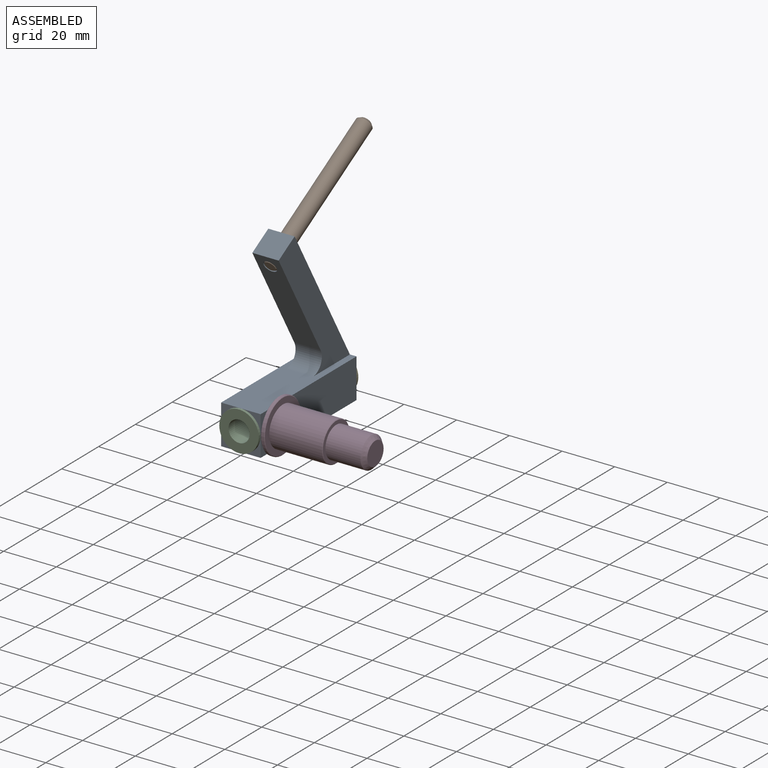
[diagram: assembled view]
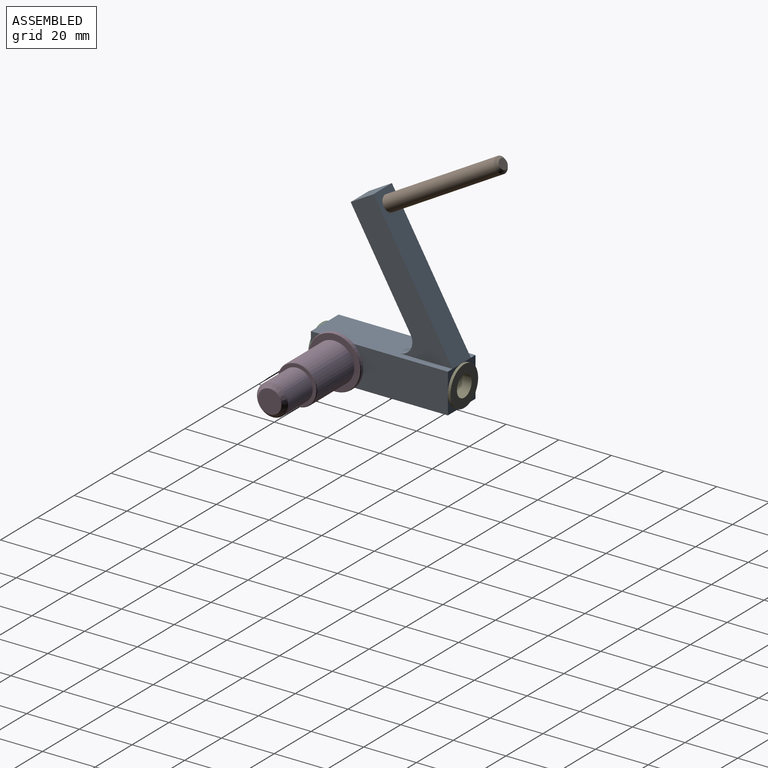
[diagram: assembled view, second angle]
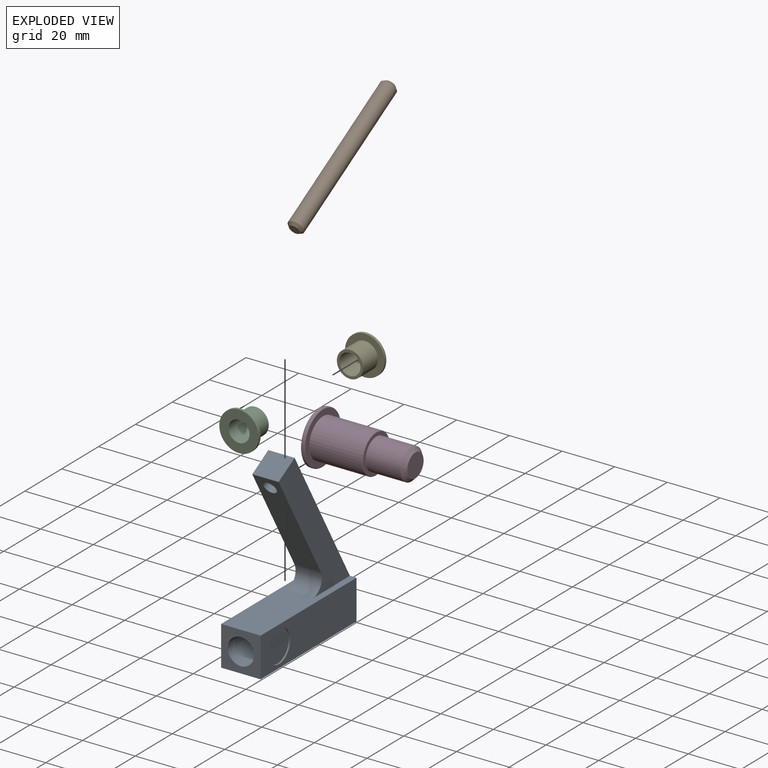
[diagram: exploded view]
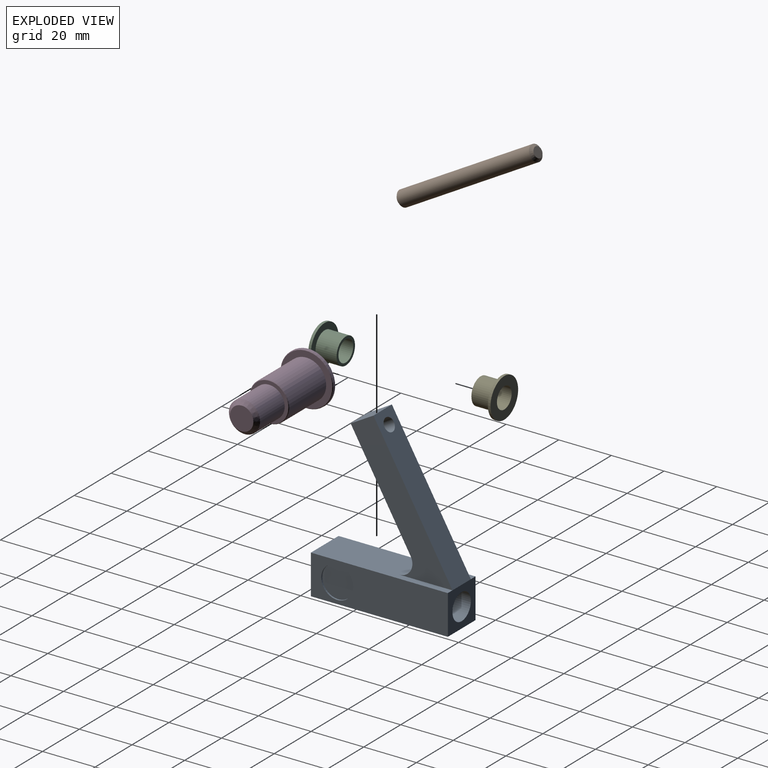
[diagram: exploded view, second angle]
ASSEMBLY  parts=5 mates=4
PART A: 16 faces, bbox 52x67x15 mm
  f0: plane 10x8.66mm, normal (0.5,0.87,0), area 100mm2, adj f1,f3,f10,f12
  f1: plane 51.96x30mm, normal (-0.87,0.5,0), area 580.4mm2, adj f0,f6,f10,f12,f13
  f2: cylinder r=5mm len=10mm, axis (0,0,-1), area 104.7mm2, adj f3,f5,f10,f12
  f3: plane 39.46x22.78mm, normal (0.87,-0.5,0), area 436mm2, adj f0,f2,f10,f12,f13
  f4: plane 15x15mm, normal (1,0,0), area 146.3mm2, adj f5,f7,f8,f9,f11
  f5: plane 52x15mm, normal (0,1,0), area 577.9mm2, adj f2,f4,f6,f8,f9,f10,f12
  f6: plane 15x15mm, normal (-1,0,0), area 146.3mm2, adj f1,f5,f7,f8,f9,f11
  f7: plane 52x15mm, normal (0,-1,0), area 780mm2, adj f4,f6,f8,f9
  f8: plane 52x15mm, normal (0,0,1), area 780mm2, adj f4,f5,f6,f7
  f9: plane 52x15mm, normal (0,0,-1), area 664.1mm2, adj f4,f5,f6,f7,f14
  f10: plane 51.96x38.66mm, normal (0,0,1), area 588.3mm2, adj f0,f1,f2,f3,f5
  f11: cylinder r=5mm len=52mm, axis (1,0,0), area 1635.3mm2, adj f4,f6
  f12: plane 51.96x38.66mm, normal (0,0,-1), area 588.3mm2, adj f0,f1,f2,f3,f5
  f13: cylinder r=2.5mm len=11.16mm, axis (-0.87,0.5,0), area 157.1mm2, adj f1,f3
  f14: cylinder r=6.07mm len=12.15mm, axis (0,0,-1), area 22.9mm2, adj f9,f15
  f15: plane 12.15x12.15mm, normal (0,0,-1), area 115.9mm2, adj f14
PART B: 5 faces, bbox 60x6x6 mm
  f0: cylinder r=3mm len=58mm, axis (-1,0,0), area 1093.3mm2, adj f3,f4
  f1: plane 4x4mm, normal (1,0,0), area 12.6mm2, adj f3
  f2: plane 4x4mm, normal (-1,0,0), area 12.6mm2, adj f4
  f3: cone r=2mm half-angle=45deg, axis (-1,0,0), area 22.2mm2, adj f0,f1
  f4: cone r=3mm half-angle=45deg, axis (1,0,0), area 22.2mm2, adj f0,f2
PART C: 6 faces, bbox 9x15x15 mm
  f0: cylinder r=7.5mm len=15mm, axis (-1,0,0), area 47.1mm2, adj f1,f2
  f1: plane 15x15mm, normal (1,0,0), area 98.2mm2, adj f0,f3
  f2: plane 15x15mm, normal (-1,0,0), area 126.4mm2, adj f0,f5
  f3: cylinder r=5mm len=10mm, axis (-1,0,0), area 251.3mm2, adj f1,f4
  f4: plane 10x10mm, normal (1,0,0), area 28.3mm2, adj f3,f5
  f5: cylinder r=4mm len=9mm, axis (1,0,0), area 226.2mm2, adj f2,f4
PART D: 14 faces, bbox 37x20x20 mm
  f0: cylinder r=5.98mm len=11.95mm, axis (-1,0,0), area 7.5mm2, adj f4,f13
  f1: plane 11.55x11.55mm, normal (-1,0,0), area 104.8mm2, adj f13
  f2: cylinder r=10mm len=20mm, axis (-1,0,0), area 69.1mm2, adj f11,f12
  f3: plane 19.6x19.6mm, normal (1,0,0), area 125.2mm2, adj f5,f11
  f4: plane 19.6x19.6mm, normal (-1,0,0), area 189.6mm2, adj f0,f12
  f5: cylinder r=7.5mm len=20.05mm, axis (-1,0,0), area 944.2mm2, adj f3,f10
  f6: plane 14.59x14.59mm, normal (1,0,0), area 56.9mm2, adj f7,f10
  f7: cylinder r=5.92mm len=13.35mm, axis (-1,0,0), area 497mm2, adj f6,f9
  f8: plane 8.85x8.85mm, normal (1,0,0), area 61.5mm2, adj f9
  f9: cone r=4.42mm half-angle=45deg, axis (-1,0,0), area 69mm2, adj f7,f8
  f10: cone r=7.29mm half-angle=45deg, axis (-1,0,0), area 13.1mm2, adj f5,f6
  f11: cone r=9.8mm half-angle=45deg, axis (-1,0,0), area 17.6mm2, adj f2,f3
  f12: cone r=10mm half-angle=45deg, axis (1,0,0), area 17.6mm2, adj f2,f4
  f13: cone r=5.98mm half-angle=45deg, axis (1,0,0), area 10.4mm2, adj f0,f1
PART E: same geometry as C
PLACE A rot(axis=(0.58,-0.58,-0.58),120deg) t=(21.92,-88.74,1.62)mm
PLACE B rot(axis=(0.65,-0.38,-0.65),138.6deg) t=(14.42,-46.94,81.75)mm
PLACE C rot(axis=(0.58,0.58,0.58),120deg) t=(14.42,-115.74,1.62)mm
PLACE D rot(axis=(1,0,0),90deg) t=(21.52,-104.74,1.62)mm
PLACE E rot(axis=(0.58,-0.58,-0.58),120deg) t=(14.42,-61.74,1.62)mm
MATE fastened A.f11 <-> E.f5  axis (0,1,0) through (14.42,-62.74,1.62)mm
MATE fastened D.f0 <-> A.f14  axis (-1,0,0) through (21.52,-104.74,1.62)mm
MATE fastened A.f11 <-> C.f5  axis (0,-1,0) through (14.42,-114.74,1.62)mm
MATE fastened A.f13 <-> B.f0  axis (0,-0.87,-0.5) through (14.42,-98.9,51.75)mm
